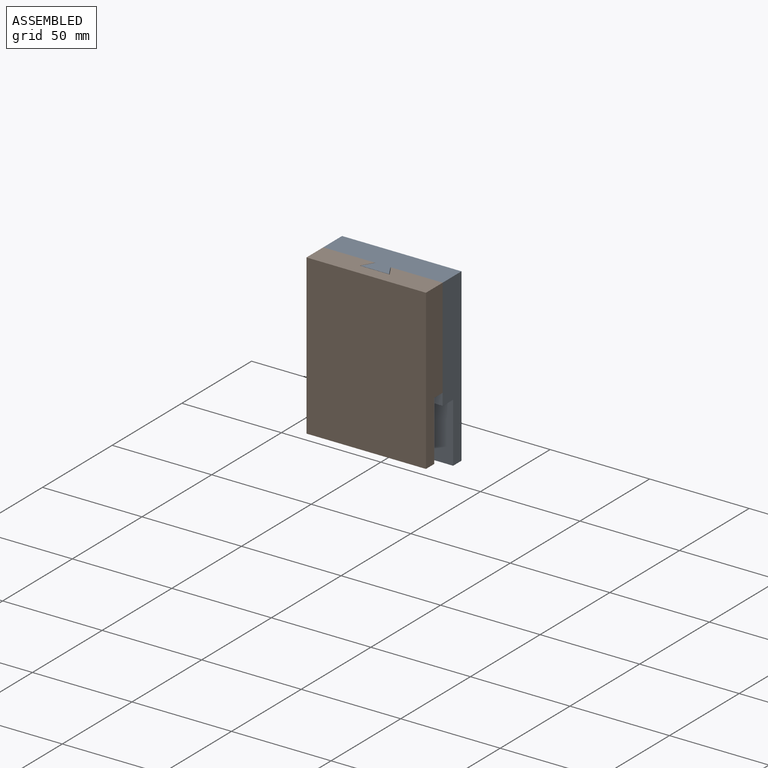
[diagram: assembled view]
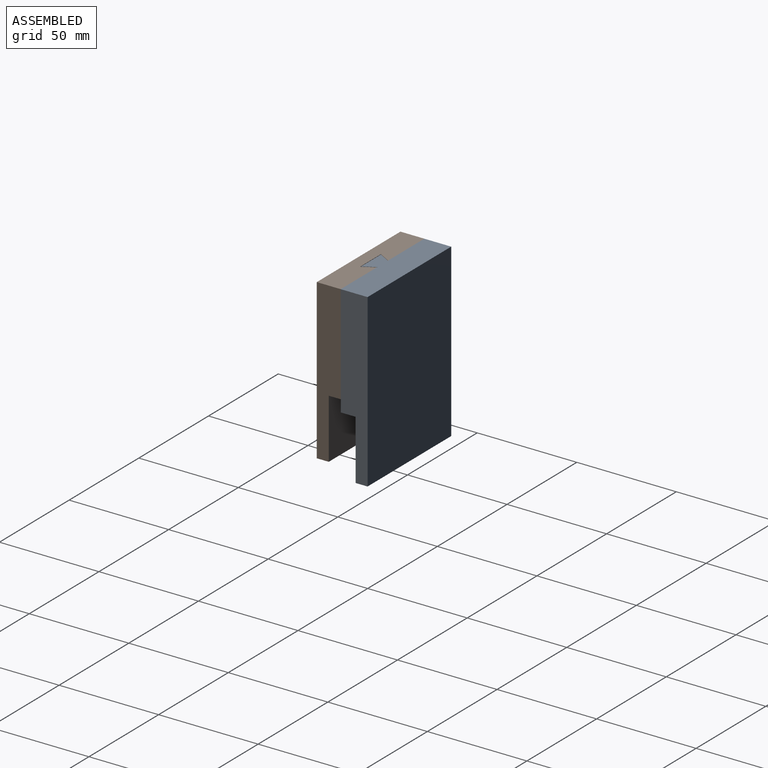
[diagram: assembled view, second angle]
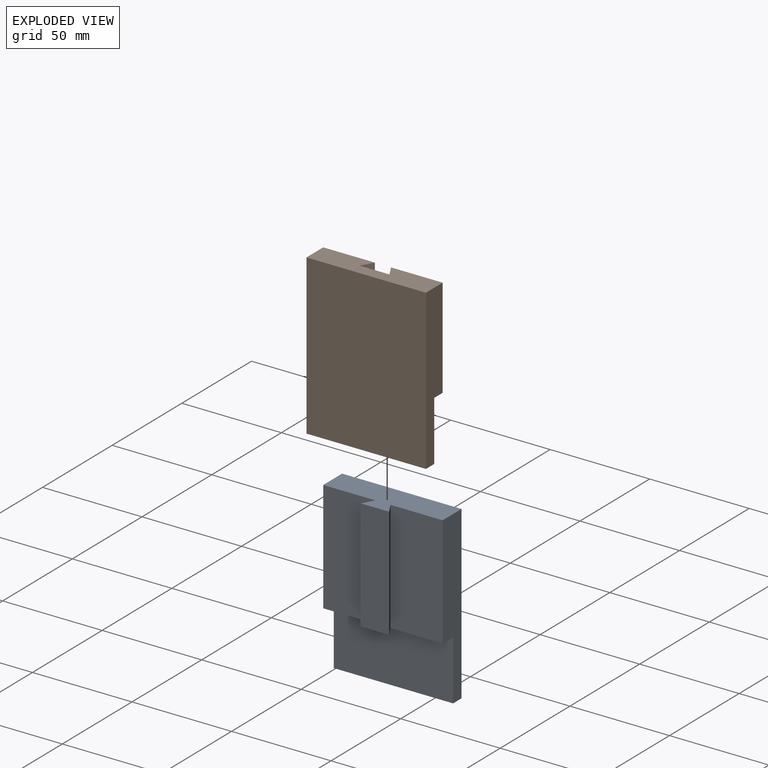
[diagram: exploded view]
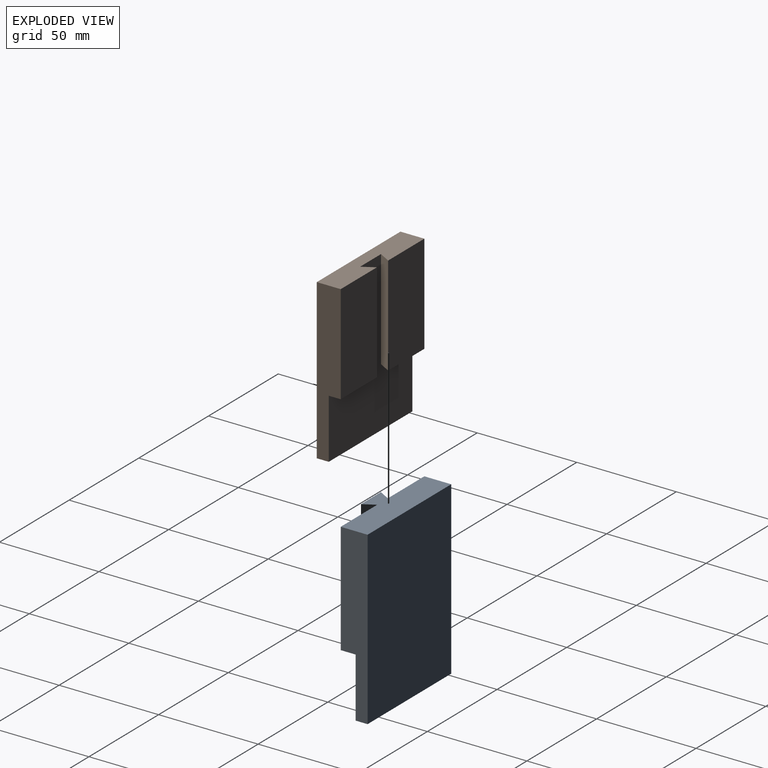
[diagram: exploded view, second angle]
ASSEMBLY  parts=2 mates=3
PART A: 12 faces, bbox 60x19.3x86 mm
  f0: plane 56x26.2mm, normal (0,1,0), area 1466.9mm2, adj f4,f6,f8,f9
  f1: plane 86x60mm, normal (0,-1,0), area 5160mm2, adj f2,f6,f7,f8
  f2: plane 60x6mm, normal (0,0,-1), area 360mm2, adj f1,f3,f7,f8
  f3: plane 60x30mm, normal (0,1,0), area 1800mm2, adj f2,f4,f7,f8
  f4: plane 60x13.3mm, normal (0,0,-1), area 513.6mm2, adj f0,f3,f5,f7,f8,f9,f10,f11
  f5: plane 56x26.2mm, normal (0,1,0), area 1466.9mm2, adj f4,f6,f7,f10
  f6: plane 60x19.3mm, normal (0,0,1), area 873.6mm2, adj f0,f1,f5,f7,f8,f9,f10,f11
  f7: plane 86x13.5mm, normal (1,0,0), area 936mm2, adj f1,f2,f3,f4,f5,f6
  f8: plane 86x13.5mm, normal (-1,0,0), area 936mm2, adj f0,f1,f2,f3,f4,f6
  f9: plane 56x5.8mm, normal (-0.87,-0.5,0), area 375mm2, adj f0,f4,f6,f11
  f10: plane 56x5.8mm, normal (0.87,-0.5,0), area 375mm2, adj f4,f5,f6,f11
  f11: plane 56x14.31mm, normal (0,1,0), area 801.2mm2, adj f4,f6,f9,f10
PART B: 12 faces, bbox 60x12x80 mm
  f0: plane 50x25.96mm, normal (0,1,0), area 1298.2mm2, adj f5,f7,f9,f10
  f1: plane 25.96x6mm, normal (0,0,-1), area 145.4mm2, adj f4,f6,f8,f11
  f2: plane 80x60mm, normal (0,-1,0), area 4800mm2, adj f3,f7,f8,f9
  f3: plane 60x6mm, normal (0,0,-1), area 360mm2, adj f2,f4,f8,f9
  f4: plane 80x60mm, normal (0,1,0), area 2550mm2, adj f1,f3,f5,f7,f8,f9,f10,f11
  f5: plane 25.96x6mm, normal (0,0,-1), area 145.4mm2, adj f0,f4,f9,f10
  f6: plane 50x25.96mm, normal (0,1,0), area 1298.2mm2, adj f1,f7,f8,f11
  f7: plane 60x12mm, normal (0,0,1), area 650.8mm2, adj f0,f2,f4,f6,f8,f9,f10,f11
  f8: plane 80x12mm, normal (1,0,0), area 780mm2, adj f1,f2,f3,f4,f6,f7
  f9: plane 80x12mm, normal (-1,0,0), area 780mm2, adj f0,f2,f3,f4,f5,f7
  f10: plane 50x6mm, normal (0.87,-0.5,0), area 346.4mm2, adj f0,f4,f5,f7
  f11: plane 50x6mm, normal (-0.87,-0.5,0), area 346.4mm2, adj f1,f4,f6,f7
PLACE A rot(axis=(0,0,1),180deg) t=(11.11,27.76,12.31)mm
PLACE B t=(-48.89,2.26,18.31)mm
MATE planar B.f7 <-> A.f6  axis (0,0,1) through (11.11,8.26,98.31)mm
MATE planar B.f8 <-> A.f8  axis (1,0,0) through (11.11,8.26,98.31)mm
MATE planar B.f6 <-> A.f0  axis (0,1,0) through (-1.88,14.26,73.31)mm
